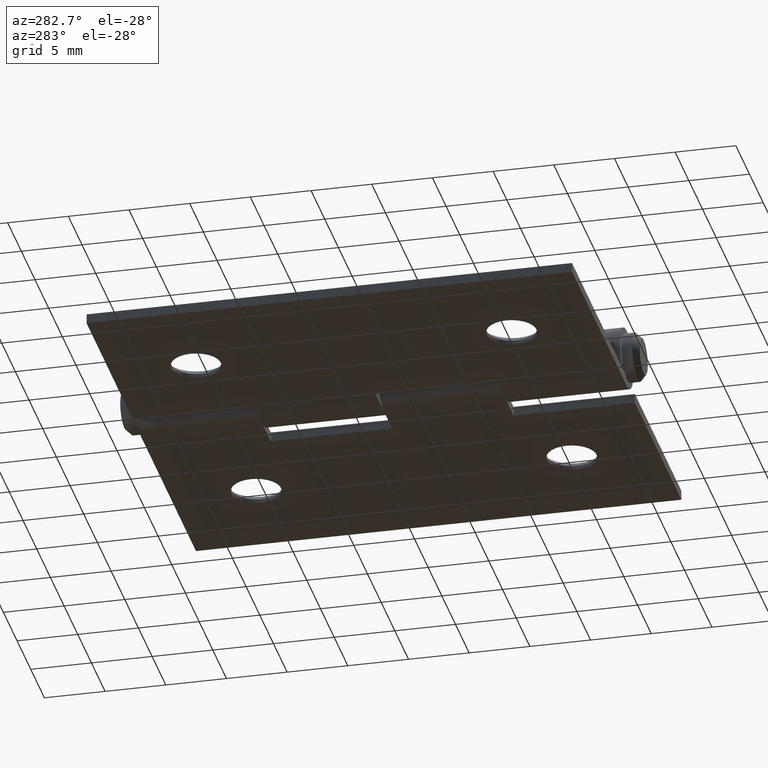
[diagram: clean part render]
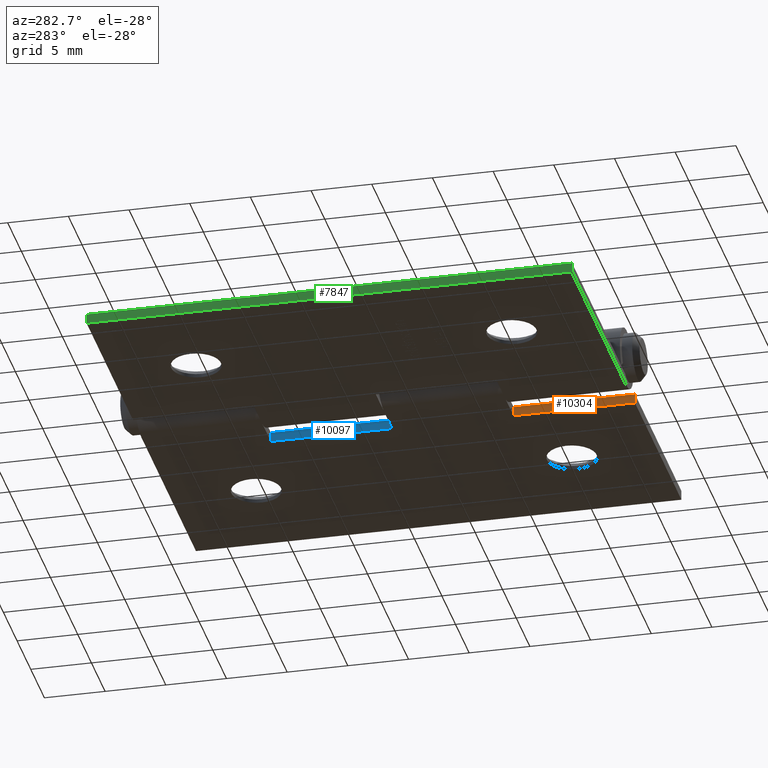
[diagram: same view with three faces highlighted in distinct colors, each labeled with its STEP entity id]
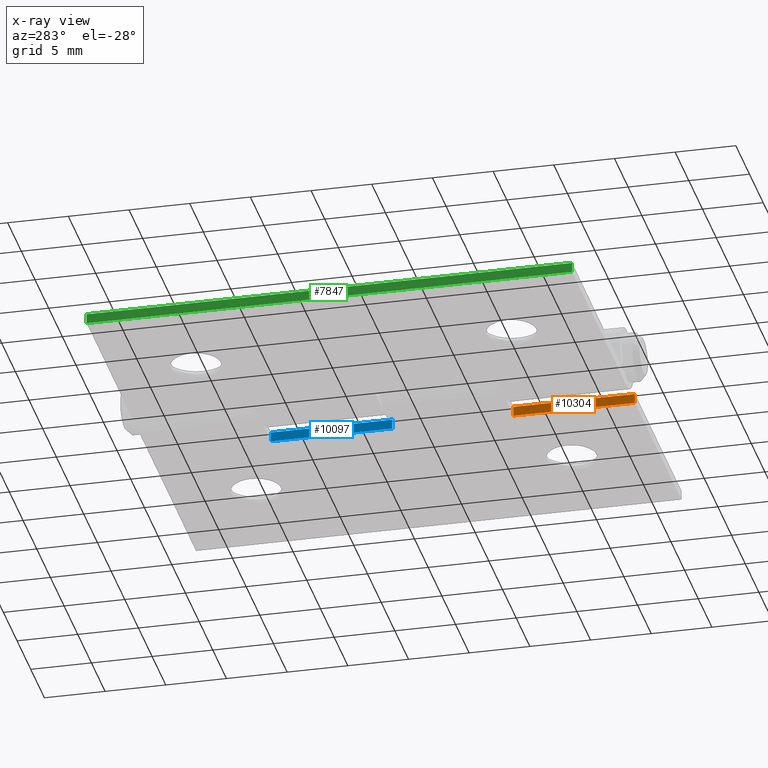
[diagram: x-ray of the same camera — body ghosted, the three highlighted faces saturated]
A machine part, auxiliary view with three faces highlighted in distinct colors.
The next image is the same camera in x-ray (body ghosted, the three faces saturated) — at least one of them is partly hidden behind the body in this view.
Their STEP definitions:

[orange] entity #10304 — the highlighted planar face has unit normal (1, -0, -0).
#95 = LINE ( 'NONE', #5666, #6969 ) ;
#237 = CARTESIAN_POINT ( 'NONE',  ( -5.499999999999998224, 20.00000000000000000, 4.662069341687667094E-16 ) ) ;
#581 = CARTESIAN_POINT ( 'NONE',  ( -5.499999999999999112, 10.00000000000000178, 0.8000000000000003775 ) ) ;
#614 = EDGE_CURVE ( 'NONE', #4120, #2878, #6485, .T. ) ;
#928 = CARTESIAN_POINT ( 'NONE',  ( -5.499999999999998224, 20.00000000000000000, 0.8000000000000012657 ) ) ;
#967 = EDGE_CURVE ( 'NONE', #2878, #6882, #5595, .T. ) ;
#1173 = EDGE_CURVE ( 'NONE', #4120, #6081, #95, .T. ) ;
#1994 = DIRECTION ( 'NONE',  ( 8.673617379884036705E-17, 1.000000000000000000, -9.629649721936180634E-33 ) ) ;
#2021 = CARTESIAN_POINT ( 'NONE',  ( -5.499999999999997335, 20.00000000000000000, 5.000000000000000000 ) ) ;
#2408 = VECTOR ( 'NONE', #1994, 1000.000000000000000 ) ;
#2878 = VERTEX_POINT ( 'NONE', #5768 ) ;
#3629 = VECTOR ( 'NONE', #9624, 1000.000000000000000 ) ;
#4120 = VERTEX_POINT ( 'NONE', #581 ) ;
#4229 = AXIS2_PLACEMENT_3D ( 'NONE', #2021, #7596, #6899 ) ;
#4672 = EDGE_CURVE ( 'NONE', #6081, #6882, #9598, .T. ) ;
#4958 = DIRECTION ( 'NONE',  ( -1.301042606982605321E-16, -0.000000000000000000, -1.000000000000000000 ) ) ;
#5107 = ORIENTED_EDGE ( 'NONE', *, *, #1173, .F. ) ;
#5389 = ORIENTED_EDGE ( 'NONE', *, *, #967, .T. ) ;
#5478 = EDGE_LOOP ( 'NONE', ( #8630, #5389, #6939, #5107 ) ) ;
#5595 = LINE ( 'NONE', #8571, #2408 ) ;
#5666 = CARTESIAN_POINT ( 'NONE',  ( -5.499999999999998224, 20.00000000000000000, 0.8000000000000003775 ) ) ;
#5768 = CARTESIAN_POINT ( 'NONE',  ( -5.499999999999999112, 10.00000000000000178, 7.155734338404328278E-16 ) ) ;
#6037 = DIRECTION ( 'NONE',  ( 8.673617379884036705E-17, 1.000000000000000000, -1.128474576789396418E-32 ) ) ;
#6081 = VERTEX_POINT ( 'NONE', #928 ) ;
#6236 = CARTESIAN_POINT ( 'NONE',  ( -5.499999999999998224, 20.00000000000000000, 2.500000000000000444 ) ) ;
#6485 = LINE ( 'NONE', #9804, #9885 ) ;
#6882 = VERTEX_POINT ( 'NONE', #237 ) ;
#6899 = DIRECTION ( 'NONE',  ( 1.301042606982605321E-16, 0.000000000000000000, 1.000000000000000000 ) ) ;
#6939 = ORIENTED_EDGE ( 'NONE', *, *, #4672, .F. ) ;
#6969 = VECTOR ( 'NONE', #6037, 1000.000000000000000 ) ;
#7596 = DIRECTION ( 'NONE',  ( -1.000000000000000000, 8.673617379884036705E-17, 1.301042606982605321E-16 ) ) ;
#8427 = PLANE ( 'NONE',  #4229 ) ;
#8571 = CARTESIAN_POINT ( 'NONE',  ( -5.499999999999998224, 20.00000000000000000, 7.155734338404327292E-16 ) ) ;
#8630 = ORIENTED_EDGE ( 'NONE', *, *, #614, .T. ) ;
#9598 = LINE ( 'NONE', #6236, #3629 ) ;
#9624 = DIRECTION ( 'NONE',  ( -1.301042606982605321E-16, 0.000000000000000000, -1.000000000000000000 ) ) ;
#9804 = CARTESIAN_POINT ( 'NONE',  ( -5.499999999999998224, 10.00000000000000178, 5.000000000000000000 ) ) ;
#9885 = VECTOR ( 'NONE', #4958, 1000.000000000000000 ) ;
#10154 = FACE_OUTER_BOUND ( 'NONE', #5478, .T. ) ;
#10304 = ADVANCED_FACE ( 'NONE', ( #10154 ), #8427, .F. ) ;

[blue] entity #10097 — the highlighted planar face has unit normal (1, 0, -0).
#349 = VERTEX_POINT ( 'NONE', #6902 ) ;
#546 = CARTESIAN_POINT ( 'NONE',  ( -5.499999999999997335, -9.999999999999998224, 5.000000000000000000 ) ) ;
#1071 = LINE ( 'NONE', #546, #8326 ) ;
#1214 = VERTEX_POINT ( 'NONE', #8450 ) ;
#1353 = DIRECTION ( 'NONE',  ( -1.000000000000000000, 0.000000000000000000, 1.301042606982605321E-16 ) ) ;
#1512 = EDGE_CURVE ( 'NONE', #6309, #3715, #9877, .T. ) ;
#1877 = ORIENTED_EDGE ( 'NONE', *, *, #9948, .F. ) ;
#1922 = LINE ( 'NONE', #7848, #6134 ) ;
#2139 = DIRECTION ( 'NONE',  ( 1.301042606982605321E-16, 0.000000000000000000, 1.000000000000000000 ) ) ;
#2270 = VECTOR ( 'NONE', #4565, 1000.000000000000000 ) ;
#2900 = DIRECTION ( 'NONE',  ( -1.301042606982605321E-16, -0.000000000000000000, -1.000000000000000000 ) ) ;
#3191 = DIRECTION ( 'NONE',  ( 0.000000000000000000, 1.000000000000000000, 0.000000000000000000 ) ) ;
#3652 = CARTESIAN_POINT ( 'NONE',  ( -5.499999999999998224, 20.00000000000000000, 0.8000000000000003775 ) ) ;
#3715 = VERTEX_POINT ( 'NONE', #4544 ) ;
#4171 = EDGE_LOOP ( 'NONE', ( #9285, #5777, #1877, #9393 ) ) ;
#4304 = DIRECTION ( 'NONE',  ( -1.301042606982605321E-16, -0.000000000000000000, -1.000000000000000000 ) ) ;
#4544 = CARTESIAN_POINT ( 'NONE',  ( -5.499999999999998224, 0.000000000000000000, 0.8000000000000003775 ) ) ;
#4565 = DIRECTION ( 'NONE',  ( 0.000000000000000000, 1.000000000000000000, 0.000000000000000000 ) ) ;
#5230 = AXIS2_PLACEMENT_3D ( 'NONE', #9378, #1353, #2139 ) ;
#5777 = ORIENTED_EDGE ( 'NONE', *, *, #7906, .T. ) ;
#5815 = EDGE_CURVE ( 'NONE', #6309, #1214, #1071, .T. ) ;
#6134 = VECTOR ( 'NONE', #3191, 1000.000000000000000 ) ;
#6225 = LINE ( 'NONE', #8340, #8628 ) ;
#6309 = VERTEX_POINT ( 'NONE', #7259 ) ;
#6902 = CARTESIAN_POINT ( 'NONE',  ( -5.499999999999998224, 0.000000000000000000, 7.155734338404327292E-16 ) ) ;
#6978 = PLANE ( 'NONE',  #5230 ) ;
#7259 = CARTESIAN_POINT ( 'NONE',  ( -5.499999999999998224, -9.999999999999998224, 0.8000000000000003775 ) ) ;
#7848 = CARTESIAN_POINT ( 'NONE',  ( -5.499999999999998224, -9.999999999999998224, 7.155734338404327292E-16 ) ) ;
#7906 = EDGE_CURVE ( 'NONE', #1214, #349, #1922, .T. ) ;
#8326 = VECTOR ( 'NONE', #2900, 1000.000000000000000 ) ;
#8340 = CARTESIAN_POINT ( 'NONE',  ( -5.499999999999997335, 0.000000000000000000, 5.000000000000000000 ) ) ;
#8450 = CARTESIAN_POINT ( 'NONE',  ( -5.499999999999998224, -9.999999999999998224, 7.155734338404327292E-16 ) ) ;
#8628 = VECTOR ( 'NONE', #4304, 1000.000000000000000 ) ;
#9285 = ORIENTED_EDGE ( 'NONE', *, *, #5815, .T. ) ;
#9378 = CARTESIAN_POINT ( 'NONE',  ( -5.499999999999997335, -9.999999999999998224, 5.000000000000000000 ) ) ;
#9393 = ORIENTED_EDGE ( 'NONE', *, *, #1512, .F. ) ;
#9877 = LINE ( 'NONE', #3652, #2270 ) ;
#9948 = EDGE_CURVE ( 'NONE', #3715, #349, #6225, .T. ) ;
#10019 = FACE_OUTER_BOUND ( 'NONE', #4171, .T. ) ;
#10097 = ADVANCED_FACE ( 'NONE', ( #10019 ), #6978, .F. ) ;

[green] entity #7847 — the highlighted planar face has unit normal (1, 0, 0).
#383 = CARTESIAN_POINT ( 'NONE',  ( -22.50000000000000000, -20.00000000000000000, 0.8000000000000024869 ) ) ;
#399 = FACE_OUTER_BOUND ( 'NONE', #4022, .T. ) ;
#419 = EDGE_CURVE ( 'NONE', #901, #8282, #9511, .T. ) ;
#465 = DIRECTION ( 'NONE',  ( 0.000000000000000000, 0.000000000000000000, -1.000000000000000000 ) ) ;
#642 = CARTESIAN_POINT ( 'NONE',  ( -22.50000000000000000, 20.00000000000000000, 0.8000000000000024869 ) ) ;
#901 = VERTEX_POINT ( 'NONE', #4815 ) ;
#1422 = ORIENTED_EDGE ( 'NONE', *, *, #6491, .T. ) ;
#2076 = VECTOR ( 'NONE', #4978, 1000.000000000000000 ) ;
#2294 = ORIENTED_EDGE ( 'NONE', *, *, #8866, .T. ) ;
#2419 = VERTEX_POINT ( 'NONE', #4816 ) ;
#2431 = VECTOR ( 'NONE', #3966, 1000.000000000000000 ) ;
#2967 = DIRECTION ( 'NONE',  ( 1.000000000000000000, -0.000000000000000000, 0.000000000000000000 ) ) ;
#3892 = CARTESIAN_POINT ( 'NONE',  ( -22.50000000000000000, 20.00000000000000000, 0.8000000000000024869 ) ) ;
#3966 = DIRECTION ( 'NONE',  ( -0.000000000000000000, -0.000000000000000000, 1.000000000000000000 ) ) ;
#4022 = EDGE_LOOP ( 'NONE', ( #1422, #8984, #4963, #2294 ) ) ;
#4308 = CARTESIAN_POINT ( 'NONE',  ( -22.50000000000000000, -20.00000000000000000, 0.8000000000000024869 ) ) ;
#4645 = DIRECTION ( 'NONE',  ( -0.000000000000000000, -1.000000000000000000, -0.000000000000000000 ) ) ;
#4815 = CARTESIAN_POINT ( 'NONE',  ( -22.50000000000000000, 20.00000000000000000, 0.8000000000000024869 ) ) ;
#4816 = CARTESIAN_POINT ( 'NONE',  ( -22.50000000000000000, -20.00000000000000000, 2.493664996716660198E-15 ) ) ;
#4963 = ORIENTED_EDGE ( 'NONE', *, *, #9810, .F. ) ;
#4978 = DIRECTION ( 'NONE',  ( -0.000000000000000000, -0.000000000000000000, 1.000000000000000000 ) ) ;
#5293 = AXIS2_PLACEMENT_3D ( 'NONE', #5357, #2967, #465 ) ;
#5357 = CARTESIAN_POINT ( 'NONE',  ( -22.50000000000000000, 20.00000000000000000, 0.8000000000000024869 ) ) ;
#5456 = PLANE ( 'NONE',  #5293 ) ;
#5581 = DIRECTION ( 'NONE',  ( -0.000000000000000000, -1.000000000000000000, -0.000000000000000000 ) ) ;
#5993 = VECTOR ( 'NONE', #5581, 1000.000000000000000 ) ;
#6112 = LINE ( 'NONE', #7067, #5993 ) ;
#6491 = EDGE_CURVE ( 'NONE', #2419, #8282, #9576, .T. ) ;
#7067 = CARTESIAN_POINT ( 'NONE',  ( -22.50000000000000000, 20.00000000000000000, 2.493664996716660198E-15 ) ) ;
#7847 = ADVANCED_FACE ( 'NONE', ( #399 ), #5456, .F. ) ;
#8139 = LINE ( 'NONE', #642, #2431 ) ;
#8282 = VERTEX_POINT ( 'NONE', #383 ) ;
#8328 = CARTESIAN_POINT ( 'NONE',  ( -22.50000000000000000, 20.00000000000000000, 2.493664996716660198E-15 ) ) ;
#8866 = EDGE_CURVE ( 'NONE', #9636, #2419, #6112, .T. ) ;
#8984 = ORIENTED_EDGE ( 'NONE', *, *, #419, .F. ) ;
#9252 = VECTOR ( 'NONE', #4645, 1000.000000000000000 ) ;
#9511 = LINE ( 'NONE', #3892, #9252 ) ;
#9576 = LINE ( 'NONE', #4308, #2076 ) ;
#9636 = VERTEX_POINT ( 'NONE', #8328 ) ;
#9810 = EDGE_CURVE ( 'NONE', #9636, #901, #8139, .T. ) ;